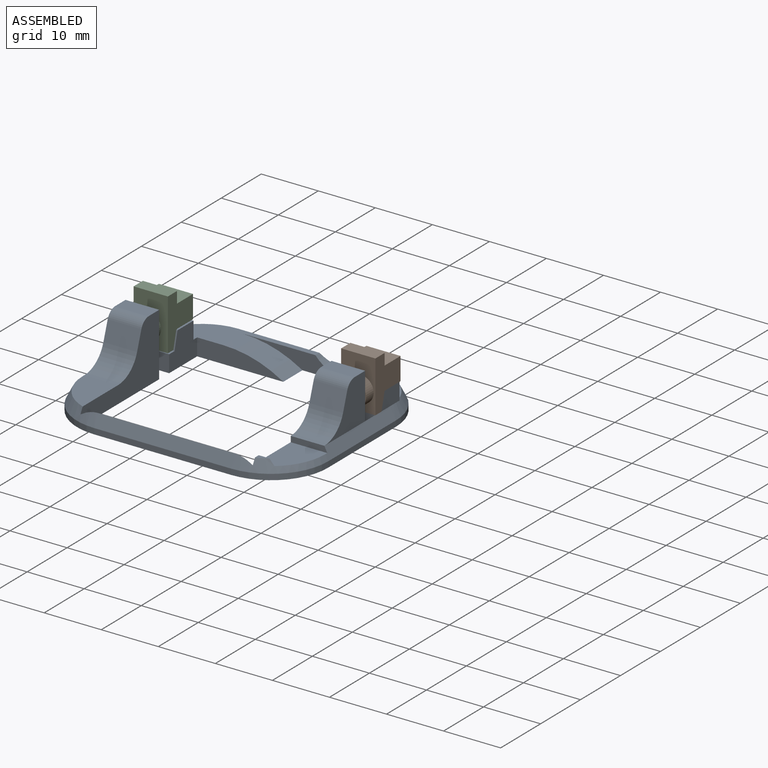
[diagram: assembled view]
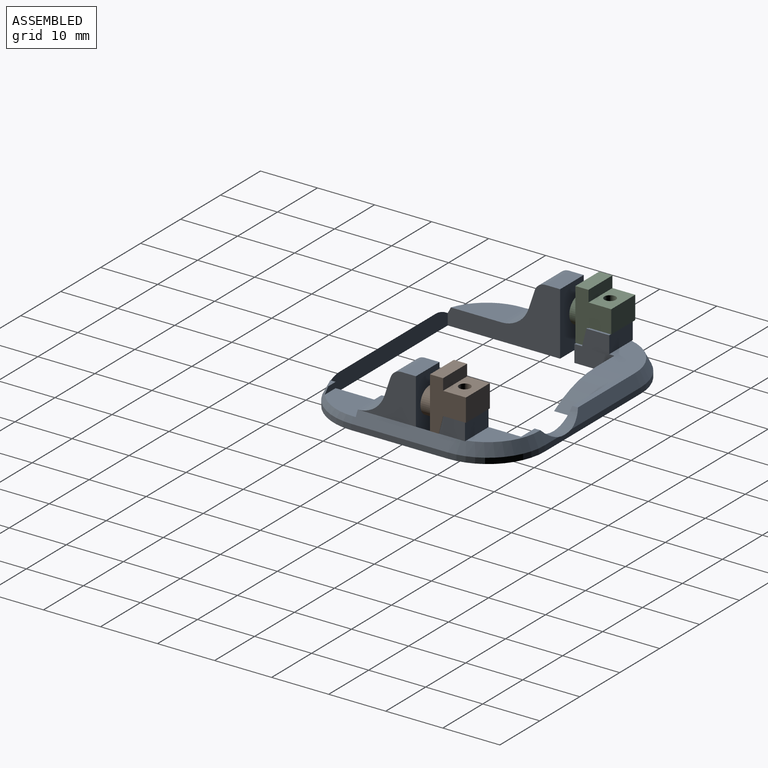
[diagram: assembled view, second angle]
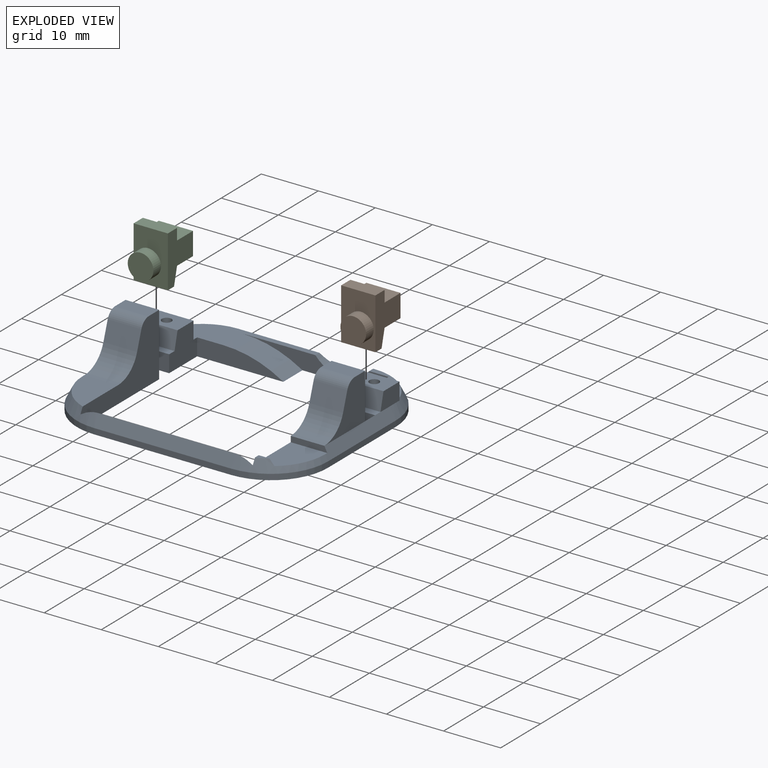
[diagram: exploded view]
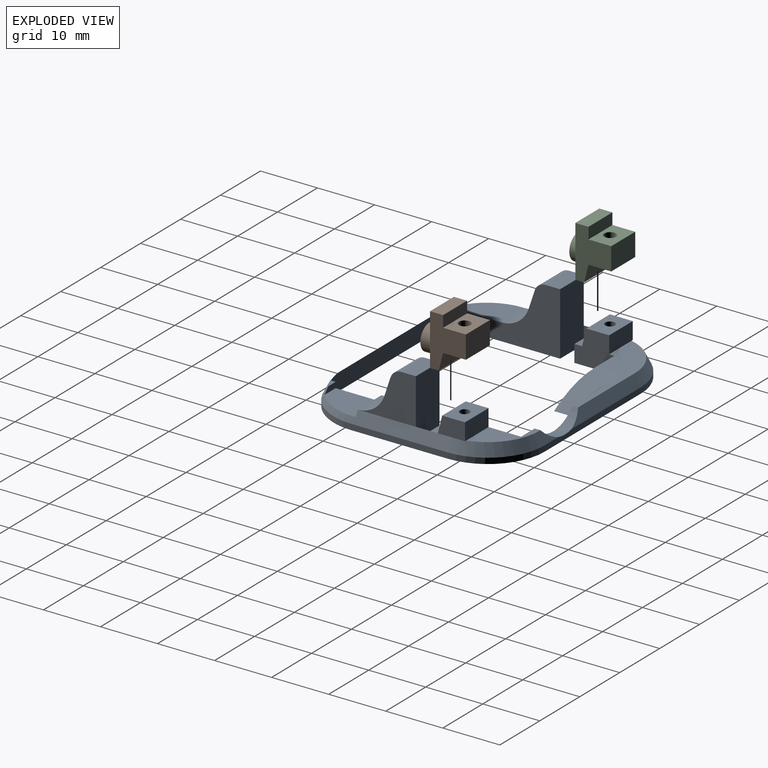
[diagram: exploded view, second angle]
ASSEMBLY  parts=3 mates=2
PART A: 67 faces, bbox 44x37x11 mm
  f0: plane 9x6.7mm, normal (0,0,1), area 25.8mm2, adj f1,f2,f12,f35,f49,f64
  f1: plane 25.64x3mm, normal (0,-1,0), area 40.9mm2, adj f0,f5,f10,f12,f37,f61,f64
  f2: plane 3.36x2mm, normal (0,0.89,0.45), area 3.3mm2, adj f0,f14,f35,f64
  f3: plane 19.71x11.01mm, normal (-1,0,0), area 95.5mm2, adj f7,f10,f19,f21,f36,f41,f42,f58
  f4: plane 17x2mm, normal (0.89,0,0.45), area 37.5mm2, adj f8,f17,f22,f35,f36,f40,f50,f58
  f5: plane 22.98x6.7mm, normal (0,0,1), area 61.6mm2, adj f1,f9,f11,f31,f33,f45,f61,f64
  f6: plane 5.9x1.35mm, normal (0,0,1), area 8mm2, adj f11,f23,f30,f56
  f7: plane 1.88x0.95mm, normal (0,0,1), area 1mm2, adj f3,f36,f59
  f8: plane 5.9x1.35mm, normal (0,0,1), area 8mm2, adj f4,f12,f20,f57
  f9: plane 15.1x3mm, normal (0,-1,0), area 35.1mm2, adj f5,f10,f11,f37,f61
  f10: plane 44x37mm, normal (0,0,-1), area 558.3mm2, adj f1,f3,f9,f11,f12,f14,f15,f16
  f11: plane 7x6mm, normal (1,0,0), area 34.1mm2, adj f5,f6,f9,f10,f23,f45,f47,f56
  f12: plane 11.8x6mm, normal (-1,0,0), area 48.5mm2, adj f0,f1,f8,f10,f20,f49,f51,f57
  f13: plane 8.88x5.9mm, normal (0,0,1), area 38.8mm2, adj f18,f30,f32,f62
  f14: plane 24x1mm, normal (0,1,0), area 23.5mm2, adj f2,f10,f26,f29,f33,f64
  f15: plane 17x1mm, normal (-1,0,0), area 17mm2, adj f10,f26,f27,f30
  f16: plane 24x1mm, normal (0,-1,0), area 24mm2, adj f10,f27,f28,f34
  f17: plane 17x1mm, normal (1,0,0), area 17mm2, adj f4,f10,f28,f29
  f18: plane 19.71x11.01mm, normal (1,0,0), area 103.5mm2, adj f10,f13,f19,f25,f32,f39,f43,f62
  f19: plane 30.2x3mm, normal (0,1,0), area 88.4mm2, adj f3,f10,f18,f32,f34,f36
  f20: plane 5.9x3mm, normal (0,-1,0), area 17.7mm2, adj f8,f10,f12,f22
  f21: plane 11x5.9mm, normal (0,1,0), area 64.9mm2, adj f3,f10,f22,f40,f41
  f22: plane 3x2.5mm, normal (-1,0,0), area 7.5mm2, adj f4,f10,f20,f21
  f23: plane 5.9x3mm, normal (0,-1,0), area 17.7mm2, adj f6,f10,f11,f24
  f24: plane 3x2.5mm, normal (1,0,0), area 7.5mm2, adj f10,f23,f25,f30
  f25: plane 11x5.9mm, normal (0,1,0), area 64.9mm2, adj f10,f18,f24,f38,f39
  f26: cylinder r=10mm len=10mm, axis (0,0,1), area 15.7mm2, adj f10,f14,f15,f31
  f27: cylinder r=10mm len=10mm, axis (0,0,-1), area 15.7mm2, adj f10,f15,f16,f32
  f28: cylinder r=10mm len=10mm, axis (0,0,1), area 15.7mm2, adj f10,f16,f17,f36
  f29: cylinder r=10mm len=10mm, axis (0,0,-1), area 15.7mm2, adj f10,f14,f17,f35
  f30: plane 17x2mm, normal (-0.89,0,0.45), area 38mm2, adj f6,f13,f15,f24,f31,f32,f38,f46
  f31: cone r=9mm half-angle=26.6deg, axis (0,0,-1), area 33.4mm2, adj f5,f26,f30,f33,f44
  f32: cone r=9mm half-angle=26.6deg, axis (0,0,-1), area 32.1mm2, adj f13,f18,f19,f27,f30,f34
  f33: plane 17.35x2mm, normal (0,0.89,0.45), area 34.6mm2, adj f5,f14,f31,f64
  f34: plane 24x2mm, normal (0,-0.89,0.45), area 53.7mm2, adj f16,f19,f32,f36
  f35: cone r=9mm half-angle=26.6deg, axis (0,0,-1), area 33.4mm2, adj f0,f2,f4,f29,f48
  f36: cone r=9mm half-angle=26.6deg, axis (0,0,-1), area 22.3mm2, adj f3,f4,f7,f19,f28,f34,f59,f60
  f37: plane 4.8x0.25mm, normal (0.51,0,0.86), area 1.4mm2, adj f1,f9,f10,f61
  f38: plane 10.27x8mm, normal (-1,0,0), area 44.7mm2, adj f25,f30,f39,f43,f62,f65
  f39: plane 5.9x2.56mm, normal (0,0,1), area 15.1mm2, adj f18,f25,f38,f65
  f40: plane 10.2x8mm, normal (1,0,0), area 44.7mm2, adj f4,f21,f41,f42,f63,f66
  f41: plane 5.9x2.56mm, normal (0,0,1), area 15.1mm2, adj f3,f21,f40,f66
  f42: plane 5.9x3.21mm, normal (0,-0.95,0.32), area 20mm2, adj f3,f40,f63,f66
  f43: plane 5.9x3.21mm, normal (0,-0.95,0.32), area 20mm2, adj f18,f38,f62,f65
  f44: plane 2.3x0.3mm, normal (0,0,-1), area 0.2mm2, adj f31,f45,f46
  f45: plane 5.9x3mm, normal (0,1,0), area 17.7mm2, adj f5,f11,f44,f46,f47
  f46: plane 4.75x3mm, normal (-1,0,0), area 13.1mm2, adj f30,f44,f45,f47,f56
  f47: plane 5.9x4mm, normal (0,0,1), area 21.3mm2, adj f11,f45,f46,f55,f56
  f48: plane 2.3x0.3mm, normal (0,0,-1), area 0.2mm2, adj f35,f49,f50
  f49: plane 5.9x3mm, normal (0,1,0), area 17.7mm2, adj f0,f12,f48,f50,f51
  f50: plane 4.75x3mm, normal (1,0,0), area 13.1mm2, adj f4,f48,f49,f51,f57
  f51: plane 5.9x4mm, normal (0,0,1), area 21.3mm2, adj f12,f49,f50,f53,f57
  f52: cone r=0mm half-angle=59deg, axis (0,0,1), area 2.6mm2, adj f53
  f53: cylinder r=0.85mm len=5mm, axis (0,0,1), area 26.7mm2, adj f51,f52
  f54: cone r=0mm half-angle=59deg, axis (0,0,1), area 2.6mm2, adj f55
  f55: cylinder r=0.85mm len=5mm, axis (0,0,1), area 26.7mm2, adj f47,f54
  f56: plane 5.9x3mm, normal (0,-0.97,0.24), area 18.2mm2, adj f6,f11,f46,f47
  f57: plane 5.9x3mm, normal (0,-0.97,0.24), area 18.2mm2, adj f8,f12,f50,f51
  f58: plane 6.4x1mm, normal (0,-1,0), area 6.2mm2, adj f3,f4,f60,f63
  f59: plane 2.76x1.03mm, normal (0,1,0), area 2.3mm2, adj f3,f7,f36,f60
  f60: plane 8x6.4mm, normal (0,0,1), area 42.9mm2, adj f3,f4,f36,f58,f59
  f61: cylinder r=20mm len=10.29mm, axis (0,-1,0), area 51.9mm2, adj f1,f5,f9,f37
  f62: cylinder r=5mm len=5.9mm, axis (1,0,0), area 36.8mm2, adj f13,f18,f38,f43
  f63: cylinder r=5mm len=5.9mm, axis (1,0,0), area 36.4mm2, adj f3,f40,f42,f58
  f64: cylinder r=6.1mm len=9.43mm, axis (0,-1,0), area 18.4mm2, adj f0,f1,f2,f5,f14,f33
  f65: cylinder r=2mm len=5.9mm, axis (1,0,0), area 14.7mm2, adj f18,f38,f39,f43
  f66: cylinder r=2mm len=5.9mm, axis (1,0,0), area 14.7mm2, adj f3,f40,f41,f42
PART B: 13 faces, bbox 8.2x9x6 mm
  f0: plane 9x6.3mm, normal (0,0,-1), area 35.6mm2, adj f1,f2,f3,f4,f5,f6,f8,f9
  f1: plane 6x1.55mm, normal (0,1,0), area 9.3mm2, adj f0,f2,f6,f7
  f2: plane 9x6mm, normal (-1,0,0), area 38.1mm2, adj f0,f1,f3,f7,f11
  f3: plane 6x2.3mm, normal (0,-1,0), area 13.8mm2, adj f0,f2,f7,f8
  f4: plane 6x4mm, normal (1,0,0), area 24mm2, adj f0,f5,f7,f9
  f5: plane 6x4mm, normal (0,1,0), area 20.9mm2, adj f0,f4,f6,f7,f10
  f6: plane 6x3mm, normal (0.97,0.24,0), area 18.6mm2, adj f0,f1,f5,f7
  f7: plane 9x6.3mm, normal (0,0,1), area 35.6mm2, adj f1,f2,f3,f4,f5,f6,f8,f9
  f8: plane 6x2mm, normal (1,0,0), area 12mm2, adj f0,f3,f7,f9
  f9: plane 6x4mm, normal (0,-1,0), area 20.9mm2, adj f0,f4,f7,f8,f10
  f10: cylinder r=1mm len=4mm, axis (0,-1,0), area 25.1mm2, adj f5,f9
  f11: cylinder r=2.25mm len=4.5mm, axis (1,0,0), area 26.9mm2, adj f2,f12
  f12: plane 4.5x4.5mm, normal (-1,0,0), area 15.9mm2, adj f11
PART C: 13 faces, bbox 8.2x9x6 mm
  f0: plane 9x6.3mm, normal (0,0,1), area 35.6mm2, adj f1,f2,f3,f4,f5,f6,f8,f9
  f1: plane 6x1.55mm, normal (0,1,0), area 9.3mm2, adj f0,f2,f6,f7
  f2: plane 9x6mm, normal (-1,0,0), area 38.1mm2, adj f0,f1,f3,f7,f11
  f3: plane 6x2.3mm, normal (0,-1,0), area 13.8mm2, adj f0,f2,f7,f8
  f4: plane 6x4mm, normal (1,0,0), area 24mm2, adj f0,f5,f7,f9
  f5: plane 6x4mm, normal (0,1,0), area 20.9mm2, adj f0,f4,f6,f7,f10
  f6: plane 6x3mm, normal (0.97,0.24,0), area 18.6mm2, adj f0,f1,f5,f7
  f7: plane 9x6.3mm, normal (0,0,-1), area 35.6mm2, adj f1,f2,f3,f4,f5,f6,f8,f9
  f8: plane 6x2mm, normal (1,0,0), area 12mm2, adj f0,f3,f7,f9
  f9: plane 6x4mm, normal (0,-1,0), area 20.9mm2, adj f0,f4,f7,f8,f10
  f10: cylinder r=1mm len=4mm, axis (0,-1,0), area 25.1mm2, adj f5,f9
  f11: cylinder r=2.25mm len=4.5mm, axis (1,0,0), area 26.9mm2, adj f2,f12
  f12: plane 4.5x4.5mm, normal (-1,0,0), area 15.9mm2, adj f11
PLACE A t=(-15.81,0.72,1.67)mm
PLACE B rot(axis=(-0.58,-0.58,0.58),120deg) t=(24.24,5.42,8.12)mm
PLACE C rot(axis=(-0.58,-0.58,0.58),120deg) t=(-31.14,5.42,8.21)mm
MATE cylindrical C.f10 <-> A.f54  axis (0,0,-1) through (-34.14,9.42,7.77)mm
MATE cylindrical B.f10 <-> A.f52  axis (0,0,-1) through (2.24,9.42,7.67)mm
